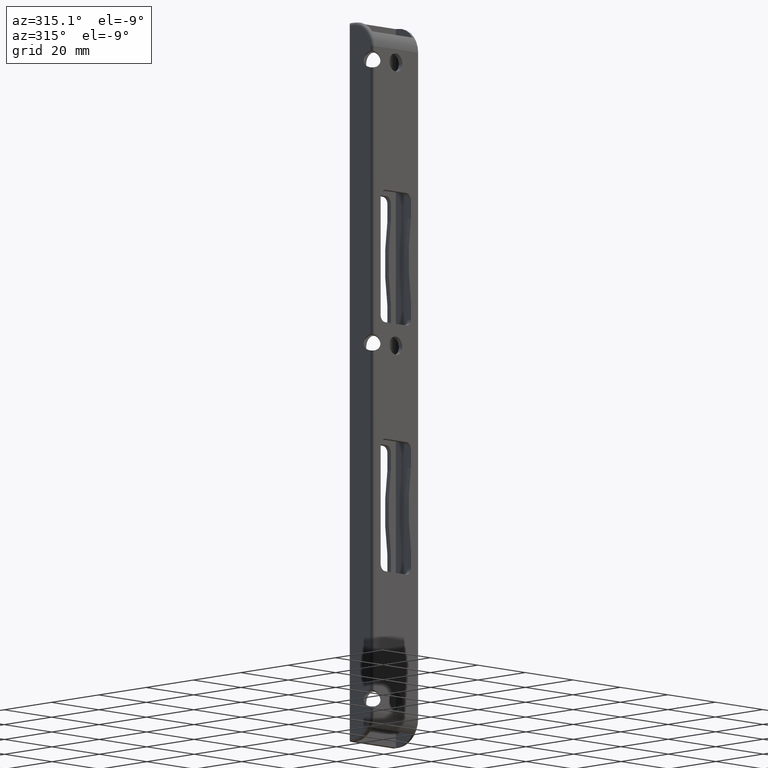
[diagram: clean part render]
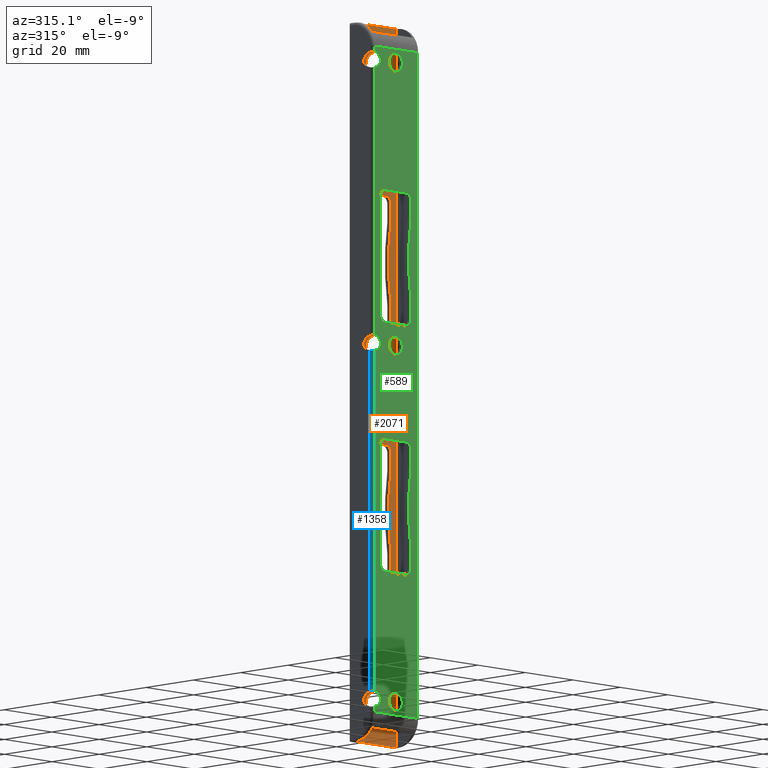
[diagram: same view with three faces highlighted in distinct colors, each labeled with its STEP entity id]
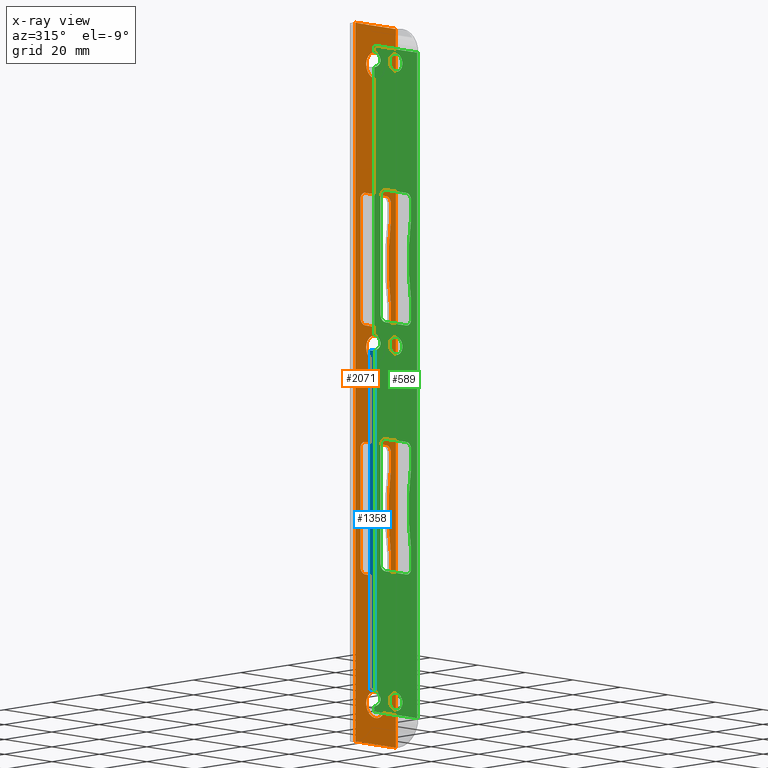
[diagram: x-ray of the same camera — body ghosted, the three highlighted faces saturated]
A machine part, auxiliary view with three faces highlighted in distinct colors.
The next image is the same camera in x-ray (body ghosted, the three faces saturated) — at least one of them is partly hidden behind the body in this view.
Their STEP definitions:

[orange] entity #2071 — the highlighted planar face has unit normal (0, -1, 0).
#25 = DIRECTION ( 'NONE',  ( -1.000000000000000000, 1.328655806570404533E-30, 0.000000000000000000 ) ) ;
#44 = LINE ( 'NONE', #1747, #2668 ) ;
#48 = EDGE_CURVE ( 'NONE', #240, #465, #2415, .T. ) ;
#51 = VERTEX_POINT ( 'NONE', #185 ) ;
#52 = EDGE_CURVE ( 'NONE', #2553, #51, #1187, .T. ) ;
#57 = CARTESIAN_POINT ( 'NONE',  ( -4.399999999999975486, 3.500000000000001332, -17.59999999999999076 ) ) ;
#66 = EDGE_CURVE ( 'NONE', #259, #252, #3198, .T. ) ;
#71 = DIRECTION ( 'NONE',  ( -1.000000000000000000, 1.328655806570404533E-30, 0.000000000000000000 ) ) ;
#90 = ORIENTED_EDGE ( 'NONE', *, *, #553, .F. ) ;
#112 = CIRCLE ( 'NONE', #953, 80.00000000000000000 ) ;
#118 = CIRCLE ( 'NONE', #2875, 4.000000000000003553 ) ;
#133 = CARTESIAN_POINT ( 'NONE',  ( 8.499999999999998224, 3.500000000000000888, -108.5000000000000000 ) ) ;
#145 = EDGE_CURVE ( 'NONE', #3005, #672, #765, .T. ) ;
#150 = ORIENTED_EDGE ( 'NONE', *, *, #48, .T. ) ;
#173 = VERTEX_POINT ( 'NONE', #2534 ) ;
#185 = CARTESIAN_POINT ( 'NONE',  ( -4.399999999999981704, 3.500000000000001332, 57.60000000000002274 ) ) ;
#200 = DIRECTION ( 'NONE',  ( 0.000000000000000000, 0.000000000000000000, -1.000000000000000000 ) ) ;
#204 = DIRECTION ( 'NONE',  ( 4.827186663794240958E-16, 1.109335647967047851E-31, -1.000000000000000000 ) ) ;
#206 = CARTESIAN_POINT ( 'NONE',  ( 4.399999999999997691, 3.500000000000001332, -17.59999999999999076 ) ) ;
#214 = ORIENTED_EDGE ( 'NONE', *, *, #599, .F. ) ;
#217 = VECTOR ( 'NONE', #1180, 1000.000000000000000 ) ;
#232 = CARTESIAN_POINT ( 'NONE',  ( 1.387778780781444256E-14, 3.500000000000000888, 11.00000000000001066 ) ) ;
#240 = VERTEX_POINT ( 'NONE', #2302 ) ;
#244 = VERTEX_POINT ( 'NONE', #2345 ) ;
#252 = VERTEX_POINT ( 'NONE', #2086 ) ;
#259 = VERTEX_POINT ( 'NONE', #1059 ) ;
#267 = CIRCLE ( 'NONE', #2507, 4.000000000000000000 ) ;
#271 = VERTEX_POINT ( 'NONE', #1848 ) ;
#277 = EDGE_CURVE ( 'NONE', #1325, #1691, #1321, .T. ) ;
#283 = EDGE_CURVE ( 'NONE', #173, #2503, #1578, .T. ) ;
#294 = EDGE_LOOP ( 'NONE', ( #2368, #2107 ) ) ;
#296 = CARTESIAN_POINT ( 'NONE',  ( -4.399999999999988809, 3.500000000000001332, -19.59999999999999076 ) ) ;
#302 = VERTEX_POINT ( 'NONE', #57 ) ;
#321 = VERTEX_POINT ( 'NONE', #1395 ) ;
#345 = EDGE_CURVE ( 'NONE', #259, #2553, #2251, .T. ) ;
#388 = DIRECTION ( 'NONE',  ( -1.000000000000000000, 1.328655806570404533E-30, 0.000000000000000000 ) ) ;
#398 = CARTESIAN_POINT ( 'NONE',  ( -8.500000000000001776, 3.500000000000000888, -57.60000000000000142 ) ) ;
#400 = DIRECTION ( 'NONE',  ( 0.000000000000000000, 0.000000000000000000, -1.000000000000000000 ) ) ;
#428 = VECTOR ( 'NONE', #2185, 1000.000000000000000 ) ;
#436 = LINE ( 'NONE', #2706, #3045 ) ;
#453 = DIRECTION ( 'NONE',  ( 1.328655806570404533E-30, -1.000000000000000000, 0.000000000000000000 ) ) ;
#461 = DIRECTION ( 'NONE',  ( 0.000000000000000000, 0.000000000000000000, -1.000000000000000000 ) ) ;
#465 = VERTEX_POINT ( 'NONE', #970 ) ;
#483 = AXIS2_PLACEMENT_3D ( 'NONE', #904, #1972, #1754 ) ;
#490 = CARTESIAN_POINT ( 'NONE',  ( 4.399999999999990585, 3.500000000000001332, 57.60000000000002274 ) ) ;
#542 = AXIS2_PLACEMENT_3D ( 'NONE', #1390, #878, #2868 ) ;
#546 = CARTESIAN_POINT ( 'NONE',  ( 6.400000000000005684, 3.500000000000000888, -55.59999999999998010 ) ) ;
#553 = EDGE_CURVE ( 'NONE', #602, #302, #990, .T. ) ;
#567 = CARTESIAN_POINT ( 'NONE',  ( 4.399999999999983480, 3.500000000000001332, 17.60000000000002629 ) ) ;
#568 = EDGE_CURVE ( 'NONE', #572, #271, #436, .T. ) ;
#572 = VERTEX_POINT ( 'NONE', #2422 ) ;
#596 = EDGE_CURVE ( 'NONE', #820, #909, #267, .T. ) ;
#599 = EDGE_CURVE ( 'NONE', #51, #3148, #2609, .T. ) ;
#602 = VERTEX_POINT ( 'NONE', #206 ) ;
#618 = ORIENTED_EDGE ( 'NONE', *, *, #277, .F. ) ;
#627 = FACE_BOUND ( 'NONE', #294, .T. ) ;
#640 = CIRCLE ( 'NONE', #2450, 4.000000000000003553 ) ;
#657 = CIRCLE ( 'NONE', #1072, 2.000000000000001776 ) ;
#659 = DIRECTION ( 'NONE',  ( 0.000000000000000000, 0.000000000000000000, -1.000000000000000000 ) ) ;
#664 = VERTEX_POINT ( 'NONE', #1007 ) ;
#672 = VERTEX_POINT ( 'NONE', #546 ) ;
#678 = ORIENTED_EDGE ( 'NONE', *, *, #283, .F. ) ;
#696 = CARTESIAN_POINT ( 'NONE',  ( 6.399999999999999467, 3.500000000000001332, 19.60000000000004050 ) ) ;
#699 = CIRCLE ( 'NONE', #2044, 4.000000000000000000 ) ;
#700 = ORIENTED_EDGE ( 'NONE', *, *, #1378, .T. ) ;
#706 = ORIENTED_EDGE ( 'NONE', *, *, #2962, .F. ) ;
#727 = DIRECTION ( 'NONE',  ( 1.328655806570404533E-30, -1.000000000000000000, 0.000000000000000000 ) ) ;
#739 = DIRECTION ( 'NONE',  ( 0.000000000000000000, 0.000000000000000000, -1.000000000000000000 ) ) ;
#752 = CARTESIAN_POINT ( 'NONE',  ( 4.898587196589354650E-16, 3.500000000000000888, 92.50000000000000000 ) ) ;
#765 = CIRCLE ( 'NONE', #962, 2.000000000000001776 ) ;
#777 = EDGE_CURVE ( 'NONE', #1804, #2503, #796, .T. ) ;
#784 = DIRECTION ( 'NONE',  ( 0.000000000000000000, 0.000000000000000000, -1.000000000000000000 ) ) ;
#796 = CIRCLE ( 'NONE', #1214, 2.000000000000001776 ) ;
#820 = VERTEX_POINT ( 'NONE', #3185 ) ;
#830 = EDGE_CURVE ( 'NONE', #2841, #321, #640, .T. ) ;
#874 = DIRECTION ( 'NONE',  ( 0.000000000000000000, 0.000000000000000000, -1.000000000000000000 ) ) ;
#875 = ORIENTED_EDGE ( 'NONE', *, *, #830, .F. ) ;
#877 = ORIENTED_EDGE ( 'NONE', *, *, #2272, .F. ) ;
#878 = DIRECTION ( 'NONE',  ( 1.328655806570404533E-30, -1.000000000000000000, 0.000000000000000000 ) ) ;
#879 = ORIENTED_EDGE ( 'NONE', *, *, #66, .T. ) ;
#895 = VECTOR ( 'NONE', #2849, 1000.000000000000000 ) ;
#904 = CARTESIAN_POINT ( 'NONE',  ( 4.400000000000004796, 3.500000000000001332, 55.60000000000002274 ) ) ;
#909 = VERTEX_POINT ( 'NONE', #1710 ) ;
#932 = DIRECTION ( 'NONE',  ( 1.328655806570404533E-30, -1.000000000000000000, 0.000000000000000000 ) ) ;
#950 = VECTOR ( 'NONE', #388, 1000.000000000000000 ) ;
#953 = AXIS2_PLACEMENT_3D ( 'NONE', #2615, #1646, #400 ) ;
#957 = DIRECTION ( 'NONE',  ( 0.000000000000000000, 0.000000000000000000, -1.000000000000000000 ) ) ;
#962 = AXIS2_PLACEMENT_3D ( 'NONE', #1788, #1508, #784 ) ;
#963 = CARTESIAN_POINT ( 'NONE',  ( 6.399999999999954170, 3.500000000000000888, 108.5000000000000142 ) ) ;
#970 = CARTESIAN_POINT ( 'NONE',  ( -8.500000000000001776, 3.500000000000000888, -108.5000000000000000 ) ) ;
#979 = ORIENTED_EDGE ( 'NONE', *, *, #52, .F. ) ;
#980 = CARTESIAN_POINT ( 'NONE',  ( -8.500000000000001776, 3.500000000000000888, 17.60000000000001918 ) ) ;
#990 = LINE ( 'NONE', #1676, #217 ) ;
#993 = DIRECTION ( 'NONE',  ( 1.328655806570404533E-30, -1.000000000000000000, 0.000000000000000000 ) ) ;
#1007 = CARTESIAN_POINT ( 'NONE',  ( 6.400000000000003020, 3.500000000000001332, -50.20952021291850542 ) ) ;
#1009 = AXIS2_PLACEMENT_3D ( 'NONE', #296, #2593, #3076 ) ;
#1029 = CARTESIAN_POINT ( 'NONE',  ( -6.399999999999995026, 3.500000000000001332, -55.59999999999997300 ) ) ;
#1052 = EDGE_CURVE ( 'NONE', #2417, #244, #2341, .T. ) ;
#1059 = CARTESIAN_POINT ( 'NONE',  ( 6.400000000000004796, 3.500000000000001332, 55.60000000000000853 ) ) ;
#1062 = VECTOR ( 'NONE', #71, 1000.000000000000000 ) ;
#1072 = AXIS2_PLACEMENT_3D ( 'NONE', #2816, #1858, #2612 ) ;
#1104 = AXIS2_PLACEMENT_3D ( 'NONE', #1439, #453, #1456 ) ;
#1180 = DIRECTION ( 'NONE',  ( -1.000000000000000000, 1.328655806570404533E-30, 0.000000000000000000 ) ) ;
#1187 = LINE ( 'NONE', #1202, #428 ) ;
#1191 = CARTESIAN_POINT ( 'NONE',  ( 6.399999999999995914, 3.500000000000001332, 24.99047978708151518 ) ) ;
#1201 = VERTEX_POINT ( 'NONE', #1339 ) ;
#1202 = CARTESIAN_POINT ( 'NONE',  ( -8.500000000000001776, 3.500000000000000888, 57.60000000000002274 ) ) ;
#1214 = AXIS2_PLACEMENT_3D ( 'NONE', #1482, #2464, #1973 ) ;
#1224 = CARTESIAN_POINT ( 'NONE',  ( -8.500000000000001776, 3.500000000000000888, 108.5000000000000000 ) ) ;
#1284 = EDGE_CURVE ( 'NONE', #572, #602, #1931, .T. ) ;
#1303 = ORIENTED_EDGE ( 'NONE', *, *, #2066, .T. ) ;
#1311 = EDGE_LOOP ( 'NONE', ( #706, #875 ) ) ;
#1321 = LINE ( 'NONE', #2807, #2465 ) ;
#1325 = VERTEX_POINT ( 'NONE', #2186 ) ;
#1339 = CARTESIAN_POINT ( 'NONE',  ( -4.400000000000003020, 3.500000000000001332, 17.60000000000002629 ) ) ;
#1347 = FACE_BOUND ( 'NONE', #2637, .T. ) ;
#1348 = DIRECTION ( 'NONE',  ( -1.686536712755230215E-16, 1.109335647967047851E-31, -1.000000000000000000 ) ) ;
#1357 = DIRECTION ( 'NONE',  ( 0.000000000000000000, 0.000000000000000000, -1.000000000000000000 ) ) ;
#1360 = CARTESIAN_POINT ( 'NONE',  ( -8.500000000000001776, 3.500000000000000888, 108.5000000000000000 ) ) ;
#1367 = CIRCLE ( 'NONE', #2510, 2.000000000000001776 ) ;
#1378 = EDGE_CURVE ( 'NONE', #252, #3115, #3001, .T. ) ;
#1390 = CARTESIAN_POINT ( 'NONE',  ( 4.400000000000011902, 3.500000000000001332, -19.59999999999998721 ) ) ;
#1394 = PLANE ( 'NONE',  #1671 ) ;
#1395 = CARTESIAN_POINT ( 'NONE',  ( -5.272528041581026239E-30, 3.500000000000000888, 100.5000000000000000 ) ) ;
#1396 = CARTESIAN_POINT ( 'NONE',  ( -4.399999999999979927, 3.500000000000001332, -57.59999999999999432 ) ) ;
#1410 = CARTESIAN_POINT ( 'NONE',  ( -8.500000000000001776, 3.500000000000000888, -108.5000000000000000 ) ) ;
#1413 = ORIENTED_EDGE ( 'NONE', *, *, #1284, .F. ) ;
#1428 = VECTOR ( 'NONE', #200, 1000.000000000000000 ) ;
#1429 = DIRECTION ( 'NONE',  ( 1.328655806570404533E-30, -1.000000000000000000, 0.000000000000000000 ) ) ;
#1439 = CARTESIAN_POINT ( 'NONE',  ( -4.399999999999995914, 3.500000000000001332, 55.60000000000002274 ) ) ;
#1449 = CARTESIAN_POINT ( 'NONE',  ( 85.39999999999999147, 3.500000000000001332, 37.60000000000000853 ) ) ;
#1452 = LINE ( 'NONE', #2230, #2262 ) ;
#1456 = DIRECTION ( 'NONE',  ( 0.000000000000000000, 0.000000000000000000, -1.000000000000000000 ) ) ;
#1482 = CARTESIAN_POINT ( 'NONE',  ( -4.399999999999995026, 3.500000000000001332, -55.59999999999998721 ) ) ;
#1508 = DIRECTION ( 'NONE',  ( 1.328655806570404533E-30, -1.000000000000000000, 0.000000000000000000 ) ) ;
#1512 = CARTESIAN_POINT ( 'NONE',  ( -6.399999999999996803, 3.500000000000001332, 55.60000000000000853 ) ) ;
#1517 = EDGE_CURVE ( 'NONE', #909, #820, #699, .T. ) ;
#1528 = ORIENTED_EDGE ( 'NONE', *, *, #3184, .T. ) ;
#1559 = CARTESIAN_POINT ( 'NONE',  ( -6.933347799794049071E-30, 3.500000000000000888, -96.50000000000000000 ) ) ;
#1578 = LINE ( 'NONE', #2314, #1586 ) ;
#1585 = ORIENTED_EDGE ( 'NONE', *, *, #2124, .T. ) ;
#1586 = VECTOR ( 'NONE', #1348, 1000.000000000000000 ) ;
#1614 = EDGE_CURVE ( 'NONE', #3005, #1804, #1857, .T. ) ;
#1632 = FACE_BOUND ( 'NONE', #2284, .T. ) ;
#1644 = ORIENTED_EDGE ( 'NONE', *, *, #345, .F. ) ;
#1646 = DIRECTION ( 'NONE',  ( 1.328655806570404533E-30, -1.000000000000000000, 0.000000000000000000 ) ) ;
#1664 = ORIENTED_EDGE ( 'NONE', *, *, #568, .T. ) ;
#1666 = CIRCLE ( 'NONE', #1009, 2.000000000000001776 ) ;
#1671 = AXIS2_PLACEMENT_3D ( 'NONE', #2632, #1888, #2328 ) ;
#1676 = CARTESIAN_POINT ( 'NONE',  ( -8.500000000000001776, 3.500000000000000888, -17.59999999999999076 ) ) ;
#1691 = VERTEX_POINT ( 'NONE', #133 ) ;
#1692 = CARTESIAN_POINT ( 'NONE',  ( 0.000000000000000000, 3.500000000000000888, 96.50000000000000000 ) ) ;
#1710 = CARTESIAN_POINT ( 'NONE',  ( 1.387778780781444413E-14, 3.500000000000000888, 15.00000000000001243 ) ) ;
#1747 = CARTESIAN_POINT ( 'NONE',  ( -6.399999999999985256, 3.500000000000000888, 108.5000000000000000 ) ) ;
#1754 = DIRECTION ( 'NONE',  ( 0.000000000000000000, 0.000000000000000000, -1.000000000000000000 ) ) ;
#1788 = CARTESIAN_POINT ( 'NONE',  ( 4.400000000000006573, 3.500000000000001332, -55.59999999999998721 ) ) ;
#1804 = VERTEX_POINT ( 'NONE', #1396 ) ;
#1816 = EDGE_CURVE ( 'NONE', #1691, #465, #1862, .T. ) ;
#1839 = VERTEX_POINT ( 'NONE', #696 ) ;
#1847 = LINE ( 'NONE', #2344, #895 ) ;
#1848 = CARTESIAN_POINT ( 'NONE',  ( 6.400000000000016342, 3.500000000000001332, -24.99047978708141216 ) ) ;
#1853 = EDGE_LOOP ( 'NONE', ( #1863, #618, #2420, #150 ) ) ;
#1857 = LINE ( 'NONE', #398, #3049 ) ;
#1858 = DIRECTION ( 'NONE',  ( -1.328655806570404533E-30, 1.000000000000000000, -0.000000000000000000 ) ) ;
#1862 = LINE ( 'NONE', #1410, #950 ) ;
#1863 = ORIENTED_EDGE ( 'NONE', *, *, #1816, .F. ) ;
#1888 = DIRECTION ( 'NONE',  ( 1.328655806570404533E-30, -1.000000000000000000, 0.000000000000000000 ) ) ;
#1908 = DIRECTION ( 'NONE',  ( 0.000000000000000000, 0.000000000000000000, -1.000000000000000000 ) ) ;
#1915 = DIRECTION ( 'NONE',  ( 0.000000000000000000, 0.000000000000000000, -1.000000000000000000 ) ) ;
#1931 = CIRCLE ( 'NONE', #542, 1.999999999999998224 ) ;
#1970 = DIRECTION ( 'NONE',  ( 9.654373327588600245E-16, 0.000000000000000000, -1.000000000000000000 ) ) ;
#1972 = DIRECTION ( 'NONE',  ( 1.328655806570404533E-30, -1.000000000000000000, 0.000000000000000000 ) ) ;
#1973 = DIRECTION ( 'NONE',  ( 0.000000000000000000, 0.000000000000000000, -1.000000000000000000 ) ) ;
#1996 = AXIS2_PLACEMENT_3D ( 'NONE', #1449, #2168, #1908 ) ;
#2007 = EDGE_CURVE ( 'NONE', #302, #173, #1666, .T. ) ;
#2028 = DIRECTION ( 'NONE',  ( 0.000000000000000000, 0.000000000000000000, -1.000000000000000000 ) ) ;
#2037 = AXIS2_PLACEMENT_3D ( 'NONE', #2595, #2298, #1357 ) ;
#2044 = AXIS2_PLACEMENT_3D ( 'NONE', #232, #993, #739 ) ;
#2066 = EDGE_CURVE ( 'NONE', #3115, #1839, #1847, .T. ) ;
#2071 = ADVANCED_FACE ( 'NONE', ( #2893, #1347, #627, #3138, #3097, #1632 ), #1394, .T. ) ;
#2080 = VECTOR ( 'NONE', #25, 1000.000000000000000 ) ;
#2086 = CARTESIAN_POINT ( 'NONE',  ( 6.400000000000016342, 3.500000000000001332, 50.20952021291860490 ) ) ;
#2107 = ORIENTED_EDGE ( 'NONE', *, *, #596, .F. ) ;
#2124 = EDGE_CURVE ( 'NONE', #271, #664, #112, .T. ) ;
#2168 = DIRECTION ( 'NONE',  ( 1.328655806570404533E-30, -1.000000000000000000, 0.000000000000000000 ) ) ;
#2185 = DIRECTION ( 'NONE',  ( -1.000000000000000000, 1.328655806570404533E-30, 0.000000000000000000 ) ) ;
#2186 = CARTESIAN_POINT ( 'NONE',  ( 8.499999999999998224, 3.500000000000000888, 108.5000000000000000 ) ) ;
#2230 = CARTESIAN_POINT ( 'NONE',  ( 6.399999999999926636, 3.500000000000000888, 108.5000000000000142 ) ) ;
#2231 = ORIENTED_EDGE ( 'NONE', *, *, #2981, .T. ) ;
#2240 = ORIENTED_EDGE ( 'NONE', *, *, #777, .T. ) ;
#2248 = DIRECTION ( 'NONE',  ( 1.328655806570404533E-30, -1.000000000000000000, 0.000000000000000000 ) ) ;
#2251 = CIRCLE ( 'NONE', #483, 2.000000000000001776 ) ;
#2262 = VECTOR ( 'NONE', #204, 1000.000000000000000 ) ;
#2272 = EDGE_CURVE ( 'NONE', #2971, #1839, #1367, .T. ) ;
#2284 = EDGE_LOOP ( 'NONE', ( #1664, #1585, #1528, #3145, #3012, #2240, #678, #2523, #90, #1413 ) ) ;
#2296 = CIRCLE ( 'NONE', #2037, 4.000000000000003553 ) ;
#2298 = DIRECTION ( 'NONE',  ( 1.328655806570404533E-30, -1.000000000000000000, 0.000000000000000000 ) ) ;
#2299 = LINE ( 'NONE', #1360, #1062 ) ;
#2302 = CARTESIAN_POINT ( 'NONE',  ( -8.500000000000001776, 3.500000000000000888, 108.5000000000000000 ) ) ;
#2314 = CARTESIAN_POINT ( 'NONE',  ( -6.399999999999967493, 3.500000000000000888, 108.5000000000000000 ) ) ;
#2328 = DIRECTION ( 'NONE',  ( 0.000000000000000000, 0.000000000000000000, -1.000000000000000000 ) ) ;
#2341 = CIRCLE ( 'NONE', #3044, 4.000000000000003553 ) ;
#2344 = CARTESIAN_POINT ( 'NONE',  ( 6.399999999999970157, 3.500000000000000888, 108.5000000000000000 ) ) ;
#2345 = CARTESIAN_POINT ( 'NONE',  ( 8.904477804581167547E-31, 3.500000000000000888, -92.50000000000000000 ) ) ;
#2368 = ORIENTED_EDGE ( 'NONE', *, *, #1517, .F. ) ;
#2393 = VERTEX_POINT ( 'NONE', #3118 ) ;
#2405 = DIRECTION ( 'NONE',  ( 1.328655806570404533E-30, -1.000000000000000000, 0.000000000000000000 ) ) ;
#2415 = LINE ( 'NONE', #1224, #1428 ) ;
#2417 = VERTEX_POINT ( 'NONE', #2947 ) ;
#2420 = ORIENTED_EDGE ( 'NONE', *, *, #2942, .T. ) ;
#2422 = CARTESIAN_POINT ( 'NONE',  ( 6.400000000000011902, 3.500000000000001332, -19.60000000000000497 ) ) ;
#2432 = ORIENTED_EDGE ( 'NONE', *, *, #2556, .F. ) ;
#2443 = CARTESIAN_POINT ( 'NONE',  ( -6.933347799794049071E-30, 3.500000000000000888, -96.50000000000000000 ) ) ;
#2450 = AXIS2_PLACEMENT_3D ( 'NONE', #1692, #2405, #659 ) ;
#2464 = DIRECTION ( 'NONE',  ( -1.328655806570404533E-30, 1.000000000000000000, -0.000000000000000000 ) ) ;
#2465 = VECTOR ( 'NONE', #874, 1000.000000000000000 ) ;
#2481 = EDGE_CURVE ( 'NONE', #2971, #1201, #3192, .T. ) ;
#2503 = VERTEX_POINT ( 'NONE', #1029 ) ;
#2507 = AXIS2_PLACEMENT_3D ( 'NONE', #3170, #932, #1915 ) ;
#2510 = AXIS2_PLACEMENT_3D ( 'NONE', #3190, #1429, #957 ) ;
#2523 = ORIENTED_EDGE ( 'NONE', *, *, #2007, .F. ) ;
#2534 = CARTESIAN_POINT ( 'NONE',  ( -6.399999999999988809, 3.500000000000001332, -19.60000000000000497 ) ) ;
#2553 = VERTEX_POINT ( 'NONE', #490 ) ;
#2556 = EDGE_CURVE ( 'NONE', #3148, #2393, #44, .T. ) ;
#2593 = DIRECTION ( 'NONE',  ( 1.328655806570404533E-30, -1.000000000000000000, 0.000000000000000000 ) ) ;
#2595 = CARTESIAN_POINT ( 'NONE',  ( 0.000000000000000000, 3.500000000000000888, 96.50000000000000000 ) ) ;
#2609 = CIRCLE ( 'NONE', #1104, 2.000000000000001776 ) ;
#2612 = DIRECTION ( 'NONE',  ( 0.000000000000000000, 0.000000000000000000, -1.000000000000000000 ) ) ;
#2615 = CARTESIAN_POINT ( 'NONE',  ( 85.40000000000000568, 3.500000000000001332, -37.60000000000000853 ) ) ;
#2632 = CARTESIAN_POINT ( 'NONE',  ( -8.500000000000001776, 3.500000000000000888, 108.5000000000000000 ) ) ;
#2637 = EDGE_LOOP ( 'NONE', ( #2852, #2964 ) ) ;
#2668 = VECTOR ( 'NONE', #2761, 1000.000000000000000 ) ;
#2695 = EDGE_CURVE ( 'NONE', #244, #2417, #118, .T. ) ;
#2699 = DIRECTION ( 'NONE',  ( 9.654373327588606161E-16, 0.000000000000000000, -1.000000000000000000 ) ) ;
#2706 = CARTESIAN_POINT ( 'NONE',  ( 6.399999999999888445, 3.500000000000000888, 108.5000000000000142 ) ) ;
#2761 = DIRECTION ( 'NONE',  ( -1.927470528863120528E-16, 0.000000000000000000, -1.000000000000000000 ) ) ;
#2807 = CARTESIAN_POINT ( 'NONE',  ( 8.499999999999998224, 3.500000000000000888, 108.5000000000000000 ) ) ;
#2816 = CARTESIAN_POINT ( 'NONE',  ( -4.400000000000003020, 3.500000000000001332, 19.60000000000002629 ) ) ;
#2837 = EDGE_LOOP ( 'NONE', ( #2432, #214, #979, #1644, #879, #700, #1303, #877, #3165, #2231 ) ) ;
#2841 = VERTEX_POINT ( 'NONE', #752 ) ;
#2849 = DIRECTION ( 'NONE',  ( 3.218124442529494136E-16, 0.000000000000000000, -1.000000000000000000 ) ) ;
#2852 = ORIENTED_EDGE ( 'NONE', *, *, #2695, .F. ) ;
#2868 = DIRECTION ( 'NONE',  ( 0.000000000000000000, 0.000000000000000000, -1.000000000000000000 ) ) ;
#2875 = AXIS2_PLACEMENT_3D ( 'NONE', #2443, #727, #461 ) ;
#2893 = FACE_BOUND ( 'NONE', #2837, .T. ) ;
#2942 = EDGE_CURVE ( 'NONE', #1325, #240, #2299, .T. ) ;
#2947 = CARTESIAN_POINT ( 'NONE',  ( 4.898587196589416773E-16, 3.500000000000000888, -100.5000000000000000 ) ) ;
#2962 = EDGE_CURVE ( 'NONE', #321, #2841, #2296, .T. ) ;
#2964 = ORIENTED_EDGE ( 'NONE', *, *, #1052, .F. ) ;
#2971 = VERTEX_POINT ( 'NONE', #567 ) ;
#2981 = EDGE_CURVE ( 'NONE', #1201, #2393, #657, .T. ) ;
#3001 = CIRCLE ( 'NONE', #1996, 79.99999999999998579 ) ;
#3005 = VERTEX_POINT ( 'NONE', #3095 ) ;
#3012 = ORIENTED_EDGE ( 'NONE', *, *, #1614, .T. ) ;
#3044 = AXIS2_PLACEMENT_3D ( 'NONE', #1559, #2248, #2028 ) ;
#3045 = VECTOR ( 'NONE', #1970, 1000.000000000000000 ) ;
#3049 = VECTOR ( 'NONE', #3153, 1000.000000000000000 ) ;
#3051 = VECTOR ( 'NONE', #2699, 1000.000000000000000 ) ;
#3076 = DIRECTION ( 'NONE',  ( 0.000000000000000000, 0.000000000000000000, -1.000000000000000000 ) ) ;
#3095 = CARTESIAN_POINT ( 'NONE',  ( 4.399999999999990585, 3.500000000000001332, -57.59999999999999432 ) ) ;
#3097 = FACE_OUTER_BOUND ( 'NONE', #1853, .T. ) ;
#3115 = VERTEX_POINT ( 'NONE', #1191 ) ;
#3118 = CARTESIAN_POINT ( 'NONE',  ( -6.400000000000003908, 3.500000000000001332, 19.60000000000004050 ) ) ;
#3138 = FACE_BOUND ( 'NONE', #1311, .T. ) ;
#3145 = ORIENTED_EDGE ( 'NONE', *, *, #145, .F. ) ;
#3148 = VERTEX_POINT ( 'NONE', #1512 ) ;
#3153 = DIRECTION ( 'NONE',  ( -1.000000000000000000, 1.328655806570404533E-30, 0.000000000000000000 ) ) ;
#3165 = ORIENTED_EDGE ( 'NONE', *, *, #2481, .T. ) ;
#3170 = CARTESIAN_POINT ( 'NONE',  ( 1.387778780781444256E-14, 3.500000000000000888, 11.00000000000001066 ) ) ;
#3184 = EDGE_CURVE ( 'NONE', #664, #672, #1452, .T. ) ;
#3185 = CARTESIAN_POINT ( 'NONE',  ( 1.436764652747338473E-14, 3.500000000000000888, 7.000000000000011546 ) ) ;
#3190 = CARTESIAN_POINT ( 'NONE',  ( 4.399999999999999467, 3.500000000000001332, 19.60000000000002629 ) ) ;
#3192 = LINE ( 'NONE', #980, #2080 ) ;
#3198 = LINE ( 'NONE', #963, #3051 ) ;

[blue] entity #1358 — the highlighted cylindrical surface (edge-blend (fillet) strip) has radius 1 mm, axis along (0, 0, -1).
#2 = B_SPLINE_CURVE_WITH_KNOTS ( 'NONE', 3,
 ( #1004, #1911, #243, #1986, #1929, #2191, #1437, #2936, #685, #224 ),
 .UNSPECIFIED., .F., .F.,
 ( 4, 2, 2, 2, 4 ),
 ( 8.673617379884034509E-19, 0.0003947158495685358735, 0.0007894316991370708796, 0.001184147548705605886, 0.001578863398274140892 ),
 .UNSPECIFIED. ) ;
#77 = B_SPLINE_CURVE_WITH_KNOTS ( 'NONE', 3,
 ( #1800, #2099, #1101, #1563, #3066, #816, #2582, #1335, #827, #314 ),
 .UNSPECIFIED., .F., .F.,
 ( 4, 2, 2, 2, 4 ),
 ( 0.000000000000000000, 0.0003947158495685360903, 0.0007894316991370721806, 0.001184147548705608271, 0.001578863398274144361 ),
 .UNSPECIFIED. ) ;
#88 = CARTESIAN_POINT ( 'NONE',  ( -10.00000000000000000, -4.000000000000000000, -94.10208423834366442 ) ) ;
#95 = ORIENTED_EDGE ( 'NONE', *, *, #249, .F. ) ;
#139 = ORIENTED_EDGE ( 'NONE', *, *, #2456, .F. ) ;
#224 = CARTESIAN_POINT ( 'NONE',  ( -9.000000000000001776, -4.999999999999999112, 8.602084238343650213 ) ) ;
#243 = CARTESIAN_POINT ( 'NONE',  ( -9.974667682813942449, -4.259173357735509313, 8.548675052398099439 ) ) ;
#249 = EDGE_CURVE ( 'NONE', #2539, #2900, #77, .T. ) ;
#314 = CARTESIAN_POINT ( 'NONE',  ( -10.00000000000000000, -4.000000000000000000, -94.10208423834366442 ) ) ;
#389 = VERTEX_POINT ( 'NONE', #1409 ) ;
#407 = DIRECTION ( 'NONE',  ( 0.000000000000000000, 0.000000000000000000, -1.000000000000000000 ) ) ;
#448 = CARTESIAN_POINT ( 'NONE',  ( -9.000000000000000000, -3.999999999999999112, 108.5000000000000000 ) ) ;
#450 = CARTESIAN_POINT ( 'NONE',  ( -9.000000000000000000, -4.999999999999999112, 108.5000000000000000 ) ) ;
#685 = CARTESIAN_POINT ( 'NONE',  ( -9.130594281356184894, -4.999999999999999112, 8.574853448287461433 ) ) ;
#816 = CARTESIAN_POINT ( 'NONE',  ( -9.799887182283946174, -4.614429218663092414, -93.99997091286256534 ) ) ;
#827 = CARTESIAN_POINT ( 'NONE',  ( -9.999999999999998224, -4.130594281356187558, -94.07485344828744189 ) ) ;
#911 = FACE_OUTER_BOUND ( 'NONE', #2842, .T. ) ;
#937 = LINE ( 'NONE', #1921, #1213 ) ;
#1004 = CARTESIAN_POINT ( 'NONE',  ( -10.00000000000000000, -3.999999999999998224, 8.602084238343653766 ) ) ;
#1101 = CARTESIAN_POINT ( 'NONE',  ( -9.259173357735509313, -4.974667682813941560, -94.04867505239809589 ) ) ;
#1213 = VECTOR ( 'NONE', #2928, 1000.000000000000000 ) ;
#1335 = CARTESIAN_POINT ( 'NONE',  ( -9.974237619709116487, -4.260538600632989947, -94.04843424357186166 ) ) ;
#1358 = ADVANCED_FACE ( 'NONE', ( #911 ), #2901, .T. ) ;
#1409 = CARTESIAN_POINT ( 'NONE',  ( -9.000000000000001776, -4.999999999999999112, 8.602084238343650213 ) ) ;
#1416 = DIRECTION ( 'NONE',  ( -1.000000000000000000, 0.000000000000000000, 0.000000000000000000 ) ) ;
#1437 = CARTESIAN_POINT ( 'NONE',  ( -9.501759100513828216, -4.874789750241642849, 8.510967683980783960 ) ) ;
#1563 = CARTESIAN_POINT ( 'NONE',  ( -9.501396767029547163, -4.875070970432749284, -94.01099540815997102 ) ) ;
#1749 = DIRECTION ( 'NONE',  ( 0.000000000000000000, 0.000000000000000000, -1.000000000000000000 ) ) ;
#1800 = CARTESIAN_POINT ( 'NONE',  ( -9.000000000000000000, -4.999999999999999112, -94.10208423834363600 ) ) ;
#1911 = CARTESIAN_POINT ( 'NONE',  ( -9.999999999999998224, -4.130562051731618389, 8.574860168628742230 ) ) ;
#1921 = CARTESIAN_POINT ( 'NONE',  ( -10.00000000000000000, -4.000000000000000000, 108.5000000000000000 ) ) ;
#1929 = CARTESIAN_POINT ( 'NONE',  ( -9.800566673775751525, -4.613543617005919195, 8.500029209613298775 ) ) ;
#1986 = CARTESIAN_POINT ( 'NONE',  ( -9.875070970432744843, -4.501396767029548052, 8.510995408159985232 ) ) ;
#2087 = ORIENTED_EDGE ( 'NONE', *, *, #3135, .F. ) ;
#2099 = CARTESIAN_POINT ( 'NONE',  ( -9.130562051731617501, -4.999999999999999112, -94.07486016862873157 ) ) ;
#2191 = CARTESIAN_POINT ( 'NONE',  ( -9.614429218663097743, -4.799887182283940845, 8.499970912862552908 ) ) ;
#2192 = ORIENTED_EDGE ( 'NONE', *, *, #3181, .F. ) ;
#2434 = LINE ( 'NONE', #450, #3209 ) ;
#2456 = EDGE_CURVE ( 'NONE', #2900, #3111, #937, .T. ) ;
#2461 = AXIS2_PLACEMENT_3D ( 'NONE', #448, #407, #1416 ) ;
#2539 = VERTEX_POINT ( 'NONE', #3023 ) ;
#2582 = CARTESIAN_POINT ( 'NONE',  ( -9.874789750241642849, -4.501759100513826439, -94.01096768398079462 ) ) ;
#2748 = CARTESIAN_POINT ( 'NONE',  ( -10.00000000000000000, -3.999999999999998224, 8.602084238343653766 ) ) ;
#2842 = EDGE_LOOP ( 'NONE', ( #2087, #139, #95, #2192 ) ) ;
#2900 = VERTEX_POINT ( 'NONE', #88 ) ;
#2901 = CYLINDRICAL_SURFACE ( 'NONE', #2461, 0.9999999999999991118 ) ;
#2928 = DIRECTION ( 'NONE',  ( -0.000000000000000000, -0.000000000000000000, 1.000000000000000000 ) ) ;
#2936 = CARTESIAN_POINT ( 'NONE',  ( -9.260538600632992612, -4.974237619709113822, 8.548434243571866986 ) ) ;
#3023 = CARTESIAN_POINT ( 'NONE',  ( -9.000000000000000000, -4.999999999999999112, -94.10208423834363600 ) ) ;
#3066 = CARTESIAN_POINT ( 'NONE',  ( -9.613543617005920083, -4.800566673775755078, -94.00002920961328812 ) ) ;
#3111 = VERTEX_POINT ( 'NONE', #2748 ) ;
#3135 = EDGE_CURVE ( 'NONE', #3111, #389, #2, .T. ) ;
#3181 = EDGE_CURVE ( 'NONE', #389, #2539, #2434, .T. ) ;
#3209 = VECTOR ( 'NONE', #1749, 1000.000000000000000 ) ;

[green] entity #589 — the highlighted planar face has unit normal (-0, 1, 0).
#8 = EDGE_CURVE ( 'NONE', #2331, #272, #1695, .T. ) ;
#16 = VERTEX_POINT ( 'NONE', #1907 ) ;
#18 = CARTESIAN_POINT ( 'NONE',  ( -4.399999999999995026, -4.999999999999999112, -55.59999999999998721 ) ) ;
#30 = EDGE_LOOP ( 'NONE', ( #3024, #1606 ) ) ;
#42 = CARTESIAN_POINT ( 'NONE',  ( -8.999999999999998224, -4.999999999999999112, 94.10208423834363600 ) ) ;
#43 = VERTEX_POINT ( 'NONE', #1667 ) ;
#75 = CIRCLE ( 'NONE', #603, 2.749999999999997335 ) ;
#81 = VERTEX_POINT ( 'NONE', #42 ) ;
#93 = LINE ( 'NONE', #2888, #2666 ) ;
#104 = ORIENTED_EDGE ( 'NONE', *, *, #667, .F. ) ;
#106 = ORIENTED_EDGE ( 'NONE', *, *, #1131, .T. ) ;
#157 = CARTESIAN_POINT ( 'NONE',  ( -6.464466094067241819, -4.999999999999999112, -96.50000000000000000 ) ) ;
#169 = ORIENTED_EDGE ( 'NONE', *, *, #849, .T. ) ;
#177 = CARTESIAN_POINT ( 'NONE',  ( -6.464466094067241819, -4.999999999999999112, 96.50000000000000000 ) ) ;
#182 = EDGE_CURVE ( 'NONE', #939, #2619, #2000, .T. ) ;
#186 = CARTESIAN_POINT ( 'NONE',  ( -7.439005865596057809, -4.999999999999999112, 8.927574015625417303 ) ) ;
#191 = DIRECTION ( 'NONE',  ( 0.000000000000000000, 0.000000000000000000, 1.000000000000000000 ) ) ;
#209 = CARTESIAN_POINT ( 'NONE',  ( 4.399999999999983480, -4.999999999999999112, 17.60000000000002629 ) ) ;
#219 = CARTESIAN_POINT ( 'NONE',  ( -9.000000000000001776, -4.999999999999999112, 8.602084238343650213 ) ) ;
#235 = DIRECTION ( 'NONE',  ( -1.000000000000000000, 1.328655806570404533E-30, -0.000000000000000000 ) ) ;
#272 = VERTEX_POINT ( 'NONE', #1605 ) ;
#278 = CARTESIAN_POINT ( 'NONE',  ( -4.400000000000003020, -4.999999999999999112, 17.60000000000002629 ) ) ;
#289 = DIRECTION ( 'NONE',  ( -3.218124442529494136E-16, 0.000000000000000000, 1.000000000000000000 ) ) ;
#290 = VERTEX_POINT ( 'NONE', #1832 ) ;
#332 = CIRCLE ( 'NONE', #2513, 2.750000000000002665 ) ;
#340 = CARTESIAN_POINT ( 'NONE',  ( 1.421456567757997526E-14, -4.999999999999999112, 8.250000000000014211 ) ) ;
#342 = ORIENTED_EDGE ( 'NONE', *, *, #571, .T. ) ;
#343 = LINE ( 'NONE', #2802, #646 ) ;
#362 = CARTESIAN_POINT ( 'NONE',  ( 4.400000000000011902, -4.999999999999999112, -19.59999999999998721 ) ) ;
#375 =( BOUNDED_CURVE ( )  B_SPLINE_CURVE ( 3, ( #2416, #2933, #186, #219 ),
 .UNSPECIFIED., .F., .T. ) 
 B_SPLINE_CURVE_WITH_KNOTS ( ( 4, 4 ),
 ( 3.141592653589793116, 4.425632428173143396 ),
 .UNSPECIFIED. ) 
 CURVE ( )  GEOMETRIC_REPRESENTATION_ITEM ( )  RATIONAL_B_SPLINE_CURVE ( ( 1.000000000000000000, 0.8672585699795258840, 0.8672585699795258840, 1.000000000000000000 ) ) 
 REPRESENTATION_ITEM ( '' )  );
#389 = VERTEX_POINT ( 'NONE', #1409 ) ;
#412 = DIRECTION ( 'NONE',  ( 1.328655806570404533E-30, -1.000000000000000000, 0.000000000000000000 ) ) ;
#413 = CARTESIAN_POINT ( 'NONE',  ( -9.000000000000000000, -4.999999999999999112, 13.39791576165636933 ) ) ;
#420 = CIRCLE ( 'NONE', #845, 80.00000000000000000 ) ;
#426 = DIRECTION ( 'NONE',  ( -1.328655806570404533E-30, 1.000000000000000000, 0.000000000000000000 ) ) ;
#433 = ORIENTED_EDGE ( 'NONE', *, *, #2731, .T. ) ;
#449 = VERTEX_POINT ( 'NONE', #1994 ) ;
#450 = CARTESIAN_POINT ( 'NONE',  ( -9.000000000000000000, -4.999999999999999112, 108.5000000000000000 ) ) ;
#500 = AXIS2_PLACEMENT_3D ( 'NONE', #1468, #2157, #2954 ) ;
#514 = DIRECTION ( 'NONE',  ( 1.000000000000000000, -1.328655806570404533E-30, 0.000000000000000000 ) ) ;
#536 = DIRECTION ( 'NONE',  ( 0.000000000000000000, 0.000000000000000000, 1.000000000000000000 ) ) ;
#537 = CIRCLE ( 'NONE', #2339, 2.000000000000001776 ) ;
#544 = VECTOR ( 'NONE', #289, 1000.000000000000000 ) ;
#545 = ORIENTED_EDGE ( 'NONE', *, *, #1519, .T. ) ;
#559 = CARTESIAN_POINT ( 'NONE',  ( -6.464466094067241819, -4.999999999999999112, -96.50000000000000000 ) ) ;
#571 = EDGE_CURVE ( 'NONE', #888, #2331, #2940, .T. ) ;
#573 = EDGE_CURVE ( 'NONE', #2891, #718, #2040, .T. ) ;
#582 = CARTESIAN_POINT ( 'NONE',  ( -9.000000000000000000, -4.999999999999999112, 100.5000000000000000 ) ) ;
#584 = CARTESIAN_POINT ( 'NONE',  ( 6.400000000000004796, -4.999999999999999112, 55.60000000000000853 ) ) ;
#589 = ADVANCED_FACE ( 'NONE', ( #2176, #2978, #1211, #1693, #2385, #1424 ), #3186, .F. ) ;
#603 = AXIS2_PLACEMENT_3D ( 'NONE', #2749, #1035, #2025 ) ;
#608 = ORIENTED_EDGE ( 'NONE', *, *, #8, .T. ) ;
#635 = DIRECTION ( 'NONE',  ( -1.328655806570404533E-30, 1.000000000000000000, 0.000000000000000000 ) ) ;
#642 = CARTESIAN_POINT ( 'NONE',  ( -6.464466094067240931, -4.999999999999999112, 95.34921985638581532 ) ) ;
#643 = AXIS2_PLACEMENT_3D ( 'NONE', #362, #635, #1082 ) ;
#645 = AXIS2_PLACEMENT_3D ( 'NONE', #674, #412, #2646 ) ;
#646 = VECTOR ( 'NONE', #2529, 1000.000000000000000 ) ;
#650 = LINE ( 'NONE', #2914, #889 ) ;
#662 = CARTESIAN_POINT ( 'NONE',  ( 4.399999999999990585, -4.999999999999999112, 57.60000000000002274 ) ) ;
#667 = EDGE_CURVE ( 'NONE', #290, #3200, #778, .T. ) ;
#673 = EDGE_CURVE ( 'NONE', #1261, #1470, #537, .T. ) ;
#674 = CARTESIAN_POINT ( 'NONE',  ( -4.400000000000003020, -4.999999999999999112, 19.60000000000002629 ) ) ;
#675 = CARTESIAN_POINT ( 'NONE',  ( -6.464466094067244484, -4.999999999999999112, 12.15078014361419179 ) ) ;
#718 = VERTEX_POINT ( 'NONE', #278 ) ;
#719 = CARTESIAN_POINT ( 'NONE',  ( -6.464466094067240931, -4.999999999999999112, -97.65078014361418468 ) ) ;
#735 = CARTESIAN_POINT ( 'NONE',  ( -9.000000000000000000, -4.999999999999999112, 108.5000000000000000 ) ) ;
#748 = DIRECTION ( 'NONE',  ( 0.000000000000000000, 0.000000000000000000, 1.000000000000000000 ) ) ;
#749 = CARTESIAN_POINT ( 'NONE',  ( 4.400000000000006573, -4.999999999999999112, -55.59999999999998721 ) ) ;
#757 = DIRECTION ( 'NONE',  ( -9.654373327588606161E-16, 0.000000000000000000, 1.000000000000000000 ) ) ;
#762 = VECTOR ( 'NONE', #2990, 1000.000000000000000 ) ;
#773 = VERTEX_POINT ( 'NONE', #209 ) ;
#778 = LINE ( 'NONE', #3058, #2126 ) ;
#788 = VERTEX_POINT ( 'NONE', #1884 ) ;
#808 = LINE ( 'NONE', #2306, #1217 ) ;
#811 = CARTESIAN_POINT ( 'NONE',  ( 8.999999999999996447, -4.999999999999999112, 108.5000000000000000 ) ) ;
#812 = EDGE_CURVE ( 'NONE', #2891, #16, #2421, .T. ) ;
#813 = CIRCLE ( 'NONE', #3056, 2.750000000000002665 ) ;
#823 = CARTESIAN_POINT ( 'NONE',  ( 1.309632362183320380E-29, -4.999999999999999112, -96.50000000000000000 ) ) ;
#825 = LINE ( 'NONE', #1133, #1483 ) ;
#843 = EDGE_CURVE ( 'NONE', #3127, #2093, #2383, .T. ) ;
#845 = AXIS2_PLACEMENT_3D ( 'NONE', #3171, #1956, #1474 ) ;
#848 = AXIS2_PLACEMENT_3D ( 'NONE', #2204, #3216, #1700 ) ;
#849 = EDGE_CURVE ( 'NONE', #2317, #1327, #2485, .T. ) ;
#870 = DIRECTION ( 'NONE',  ( -0.000000000000000000, -0.000000000000000000, 1.000000000000000000 ) ) ;
#884 = EDGE_CURVE ( 'NONE', #1327, #2927, #1799, .T. ) ;
#888 = VERTEX_POINT ( 'NONE', #582 ) ;
#889 = VECTOR ( 'NONE', #2881, 1000.000000000000000 ) ;
#898 = CIRCLE ( 'NONE', #1829, 2.000000000000001776 ) ;
#902 = EDGE_CURVE ( 'NONE', #3200, #3127, #420, .T. ) ;
#907 = VERTEX_POINT ( 'NONE', #413 ) ;
#910 = ORIENTED_EDGE ( 'NONE', *, *, #812, .T. ) ;
#921 = ORIENTED_EDGE ( 'NONE', *, *, #2943, .T. ) ;
#925 = CARTESIAN_POINT ( 'NONE',  ( -6.464466094067240931, -4.999999999999999112, 97.65078014361418468 ) ) ;
#930 = ORIENTED_EDGE ( 'NONE', *, *, #3181, .T. ) ;
#934 = CARTESIAN_POINT ( 'NONE',  ( 6.399999999999995914, -4.999999999999999112, 24.99047978708151518 ) ) ;
#939 = VERTEX_POINT ( 'NONE', #2233 ) ;
#1005 = ORIENTED_EDGE ( 'NONE', *, *, #182, .T. ) ;
#1006 = EDGE_CURVE ( 'NONE', #907, #2401, #2590, .T. ) ;
#1032 = ORIENTED_EDGE ( 'NONE', *, *, #673, .F. ) ;
#1035 = DIRECTION ( 'NONE',  ( -1.328655806570404533E-30, 1.000000000000000000, 0.000000000000000000 ) ) ;
#1050 = EDGE_CURVE ( 'NONE', #718, #773, #808, .T. ) ;
#1051 = ORIENTED_EDGE ( 'NONE', *, *, #1603, .T. ) ;
#1054 = CIRCLE ( 'NONE', #3090, 2.750000000000002665 ) ;
#1055 =( BOUNDED_CURVE ( )  B_SPLINE_CURVE ( 3, ( #1120, #2100, #1579, #559 ),
 .UNSPECIFIED., .F., .T. ) 
 B_SPLINE_CURVE_WITH_KNOTS ( ( 4, 4 ),
 ( 1.857552879006443503, 3.141592653589793116 ),
 .UNSPECIFIED. ) 
 CURVE ( )  GEOMETRIC_REPRESENTATION_ITEM ( )  RATIONAL_B_SPLINE_CURVE ( ( 1.000000000000000000, 0.8672585699795259950, 0.8672585699795259950, 1.000000000000000000 ) ) 
 REPRESENTATION_ITEM ( '' )  );
#1056 = VECTOR ( 'NONE', #1932, 1000.000000000000000 ) ;
#1066 = CARTESIAN_POINT ( 'NONE',  ( -10.00000000000000000, -4.999999999999999112, -100.5000000000000142 ) ) ;
#1082 = DIRECTION ( 'NONE',  ( 0.000000000000000000, 0.000000000000000000, 1.000000000000000000 ) ) ;
#1092 = ORIENTED_EDGE ( 'NONE', *, *, #2644, .T. ) ;
#1096 = LINE ( 'NONE', #811, #2141 ) ;
#1120 = CARTESIAN_POINT ( 'NONE',  ( -9.000000000000000000, -4.999999999999999112, -94.10208423834363600 ) ) ;
#1131 = EDGE_CURVE ( 'NONE', #2927, #1221, #2812, .T. ) ;
#1133 = CARTESIAN_POINT ( 'NONE',  ( -4.399999999999981704, -4.999999999999999112, 57.60000000000002274 ) ) ;
#1157 = VERTEX_POINT ( 'NONE', #1609 ) ;
#1168 = EDGE_CURVE ( 'NONE', #81, #907, #93, .T. ) ;
#1175 = CARTESIAN_POINT ( 'NONE',  ( 6.933347799794049071E-30, -4.999999999999999112, 96.50000000000000000 ) ) ;
#1177 = VERTEX_POINT ( 'NONE', #340 ) ;
#1178 = CARTESIAN_POINT ( 'NONE',  ( 6.400000000000003020, -4.999999999999999112, -50.20952021291850542 ) ) ;
#1193 = DIRECTION ( 'NONE',  ( 1.927470528863120528E-16, 0.000000000000000000, 1.000000000000000000 ) ) ;
#1203 = DIRECTION ( 'NONE',  ( -1.328655806570404533E-30, 1.000000000000000000, 0.000000000000000000 ) ) ;
#1205 = EDGE_CURVE ( 'NONE', #2619, #2093, #3194, .T. ) ;
#1211 = FACE_BOUND ( 'NONE', #30, .T. ) ;
#1217 = VECTOR ( 'NONE', #1764, 1000.000000000000000 ) ;
#1221 = VERTEX_POINT ( 'NONE', #1838 ) ;
#1225 = CARTESIAN_POINT ( 'NONE',  ( -8.999999999999998224, -4.999999999999999112, -98.89791576165636400 ) ) ;
#1228 = CARTESIAN_POINT ( 'NONE',  ( 6.400000000000010125, -4.999999999999999112, 50.20952021291860490 ) ) ;
#1243 = CARTESIAN_POINT ( 'NONE',  ( -4.399999999999988809, -4.999999999999999112, -19.59999999999999076 ) ) ;
#1261 = VERTEX_POINT ( 'NONE', #2105 ) ;
#1287 = AXIS2_PLACEMENT_3D ( 'NONE', #1305, #1968, #536 ) ;
#1298 = ORIENTED_EDGE ( 'NONE', *, *, #1205, .T. ) ;
#1305 = CARTESIAN_POINT ( 'NONE',  ( 85.39999999999999147, -4.999999999999999112, 37.60000000000000853 ) ) ;
#1306 = EDGE_LOOP ( 'NONE', ( #2672, #910, #2173, #1802, #433, #2346, #1465, #1336, #1092, #2023 ) ) ;
#1307 = EDGE_CURVE ( 'NONE', #2401, #389, #375, .T. ) ;
#1313 = CARTESIAN_POINT ( 'NONE',  ( 1.387778780781448515E-14, -4.999999999999999112, 13.75000000000000888 ) ) ;
#1327 = VERTEX_POINT ( 'NONE', #1225 ) ;
#1329 = DIRECTION ( 'NONE',  ( -1.328655806570404533E-30, 1.000000000000000000, 0.000000000000000000 ) ) ;
#1332 = DIRECTION ( 'NONE',  ( 0.000000000000000000, 0.000000000000000000, 1.000000000000000000 ) ) ;
#1336 = ORIENTED_EDGE ( 'NONE', *, *, #2581, .F. ) ;
#1340 = CARTESIAN_POINT ( 'NONE',  ( -9.000000000000000000, -4.999999999999999112, 98.89791576165636400 ) ) ;
#1345 = DIRECTION ( 'NONE',  ( 1.000000000000000000, -1.328655806570404883E-30, 0.000000000000000000 ) ) ;
#1362 = CARTESIAN_POINT ( 'NONE',  ( -9.000000000000000000, -4.999999999999999112, 108.5000000000000000 ) ) ;
#1374 = EDGE_CURVE ( 'NONE', #449, #43, #2252, .T. ) ;
#1409 = CARTESIAN_POINT ( 'NONE',  ( -9.000000000000001776, -4.999999999999999112, 8.602084238343650213 ) ) ;
#1415 = CARTESIAN_POINT ( 'NONE',  ( -9.000000000000000000, -4.999999999999999112, 98.89791576165636400 ) ) ;
#1422 = CARTESIAN_POINT ( 'NONE',  ( -7.439005865596054257, -4.999999999999999112, -98.57242598437457559 ) ) ;
#1423 = CIRCLE ( 'NONE', #1621, 2.749999999999997335 ) ;
#1424 = FACE_BOUND ( 'NONE', #2527, .T. ) ;
#1441 = DIRECTION ( 'NONE',  ( 0.000000000000000000, 0.000000000000000000, 1.000000000000000000 ) ) ;
#1463 = CARTESIAN_POINT ( 'NONE',  ( -6.464466094067241819, -4.999999999999999112, 96.50000000000000000 ) ) ;
#1465 = ORIENTED_EDGE ( 'NONE', *, *, #3052, .F. ) ;
#1468 = CARTESIAN_POINT ( 'NONE',  ( -4.399999999999995914, -4.999999999999999112, 55.60000000000002274 ) ) ;
#1470 = VERTEX_POINT ( 'NONE', #2692 ) ;
#1474 = DIRECTION ( 'NONE',  ( 0.000000000000000000, 0.000000000000000000, 1.000000000000000000 ) ) ;
#1483 = VECTOR ( 'NONE', #1345, 1000.000000000000000 ) ;
#1491 = LINE ( 'NONE', #1544, #544 ) ;
#1507 = DIRECTION ( 'NONE',  ( 0.000000000000000000, 0.000000000000000000, 1.000000000000000000 ) ) ;
#1519 = EDGE_CURVE ( 'NONE', #1157, #3101, #332, .T. ) ;
#1544 = CARTESIAN_POINT ( 'NONE',  ( 6.399999999999997691, -4.999999999999999112, 19.60000000000004050 ) ) ;
#1561 = CARTESIAN_POINT ( 'NONE',  ( 6.933347799794049071E-30, -4.999999999999999112, 96.50000000000000000 ) ) ;
#1567 = EDGE_CURVE ( 'NONE', #1470, #3168, #343, .T. ) ;
#1568 = VERTEX_POINT ( 'NONE', #1313 ) ;
#1579 = CARTESIAN_POINT ( 'NONE',  ( -6.464466094067240931, -4.999999999999999112, -95.34921985638581532 ) ) ;
#1581 = ORIENTED_EDGE ( 'NONE', *, *, #1840, .T. ) ;
#1588 = CARTESIAN_POINT ( 'NONE',  ( -6.464466094067244484, -4.999999999999999112, 11.00000000000001066 ) ) ;
#1590 = CIRCLE ( 'NONE', #500, 2.000000000000001776 ) ;
#1601 = DIRECTION ( 'NONE',  ( 0.000000000000000000, 0.000000000000000000, 1.000000000000000000 ) ) ;
#1603 = EDGE_CURVE ( 'NONE', #1221, #3112, #1096, .T. ) ;
#1605 = CARTESIAN_POINT ( 'NONE',  ( -6.464466094067241819, -4.999999999999999112, 96.50000000000000000 ) ) ;
#1606 = ORIENTED_EDGE ( 'NONE', *, *, #2874, .T. ) ;
#1609 = CARTESIAN_POINT ( 'NONE',  ( 3.367778697655328987E-16, -4.999999999999999112, -99.25000000000000000 ) ) ;
#1621 = AXIS2_PLACEMENT_3D ( 'NONE', #2542, #2989, #1507 ) ;
#1627 = AXIS2_PLACEMENT_3D ( 'NONE', #749, #1784, #2790 ) ;
#1629 = VECTOR ( 'NONE', #2459, 1000.000000000000000 ) ;
#1630 = CARTESIAN_POINT ( 'NONE',  ( -7.439005865596054257, -4.999999999999999112, 94.42757401562542441 ) ) ;
#1638 = VERTEX_POINT ( 'NONE', #934 ) ;
#1651 = ORIENTED_EDGE ( 'NONE', *, *, #1307, .T. ) ;
#1659 = CARTESIAN_POINT ( 'NONE',  ( -6.464466094067244484, -4.999999999999999112, 11.00000000000001066 ) ) ;
#1667 = CARTESIAN_POINT ( 'NONE',  ( 6.933347799794049071E-30, -4.999999999999999112, 99.25000000000000000 ) ) ;
#1673 = VECTOR ( 'NONE', #514, 1000.000000000000000 ) ;
#1688 = ORIENTED_EDGE ( 'NONE', *, *, #1374, .T. ) ;
#1693 = FACE_BOUND ( 'NONE', #1774, .T. ) ;
#1695 =( BOUNDED_CURVE ( )  B_SPLINE_CURVE ( 3, ( #1415, #3163, #925, #1463 ),
 .UNSPECIFIED., .F., .T. ) 
 B_SPLINE_CURVE_WITH_KNOTS ( ( 4, 4 ),
 ( 1.857552879006443503, 3.141592653589793116 ),
 .UNSPECIFIED. ) 
 CURVE ( )  GEOMETRIC_REPRESENTATION_ITEM ( )  RATIONAL_B_SPLINE_CURVE ( ( 1.000000000000000000, 0.8672585699795259950, 0.8672585699795259950, 1.000000000000000000 ) ) 
 REPRESENTATION_ITEM ( '' )  );
#1698 = EDGE_CURVE ( 'NONE', #272, #81, #2950, .T. ) ;
#1700 = DIRECTION ( 'NONE',  ( 0.000000000000000000, 0.000000000000000000, 1.000000000000000000 ) ) ;
#1704 = ORIENTED_EDGE ( 'NONE', *, *, #2255, .T. ) ;
#1708 = CARTESIAN_POINT ( 'NONE',  ( -8.999999999999998224, -4.999999999999999112, -98.89791576165636400 ) ) ;
#1732 = CIRCLE ( 'NONE', #3134, 2.000000000000001776 ) ;
#1734 = DIRECTION ( 'NONE',  ( -1.328655806570404533E-30, 1.000000000000000000, 0.000000000000000000 ) ) ;
#1736 = LINE ( 'NONE', #2178, #1826 ) ;
#1745 = EDGE_CURVE ( 'NONE', #2539, #2317, #1055, .T. ) ;
#1749 = DIRECTION ( 'NONE',  ( 0.000000000000000000, 0.000000000000000000, -1.000000000000000000 ) ) ;
#1760 = VERTEX_POINT ( 'NONE', #584 ) ;
#1761 = LINE ( 'NONE', #1228, #2030 ) ;
#1764 = DIRECTION ( 'NONE',  ( 1.000000000000000000, -1.328655806570404533E-30, 0.000000000000000000 ) ) ;
#1774 = EDGE_LOOP ( 'NONE', ( #3019, #545 ) ) ;
#1784 = DIRECTION ( 'NONE',  ( -1.328655806570404533E-30, 1.000000000000000000, 0.000000000000000000 ) ) ;
#1799 = LINE ( 'NONE', #1362, #3131 ) ;
#1802 = ORIENTED_EDGE ( 'NONE', *, *, #2966, .T. ) ;
#1807 = ORIENTED_EDGE ( 'NONE', *, *, #2985, .T. ) ;
#1826 = VECTOR ( 'NONE', #235, 1000.000000000000000 ) ;
#1829 = AXIS2_PLACEMENT_3D ( 'NONE', #3193, #426, #2884 ) ;
#1832 = CARTESIAN_POINT ( 'NONE',  ( 6.400000000000003908, -4.999999999999999112, -55.59999999999998010 ) ) ;
#1838 = CARTESIAN_POINT ( 'NONE',  ( 8.999999999999996447, -4.999999999999999112, -100.5000000000000142 ) ) ;
#1840 = EDGE_CURVE ( 'NONE', #1261, #788, #650, .T. ) ;
#1884 = CARTESIAN_POINT ( 'NONE',  ( -6.399999999999988809, -4.999999999999999112, -19.60000000000000497 ) ) ;
#1896 = ORIENTED_EDGE ( 'NONE', *, *, #1567, .F. ) ;
#1907 = CARTESIAN_POINT ( 'NONE',  ( -6.399999999999996803, -4.999999999999999112, 55.60000000000000853 ) ) ;
#1932 = DIRECTION ( 'NONE',  ( -9.654373327588600245E-16, 0.000000000000000000, 1.000000000000000000 ) ) ;
#1955 = DIRECTION ( 'NONE',  ( -1.328655806570404533E-30, 1.000000000000000000, 0.000000000000000000 ) ) ;
#1956 = DIRECTION ( 'NONE',  ( -1.328655806570404533E-30, 1.000000000000000000, 0.000000000000000000 ) ) ;
#1968 = DIRECTION ( 'NONE',  ( -1.328655806570404533E-30, 1.000000000000000000, 0.000000000000000000 ) ) ;
#1983 = ORIENTED_EDGE ( 'NONE', *, *, #1006, .T. ) ;
#1987 = ORIENTED_EDGE ( 'NONE', *, *, #902, .F. ) ;
#1994 = CARTESIAN_POINT ( 'NONE',  ( 3.367778697655267357E-16, -4.999999999999999112, 93.75000000000000000 ) ) ;
#2000 = LINE ( 'NONE', #2268, #762 ) ;
#2003 = CARTESIAN_POINT ( 'NONE',  ( 4.399999999999997691, -4.999999999999999112, -17.59999999999999076 ) ) ;
#2005 = DIRECTION ( 'NONE',  ( 0.000000000000000000, 0.000000000000000000, 1.000000000000000000 ) ) ;
#2008 = CARTESIAN_POINT ( 'NONE',  ( 1.309632362183320380E-29, -4.999999999999999112, -96.50000000000000000 ) ) ;
#2021 = CARTESIAN_POINT ( 'NONE',  ( 1.309632362183320380E-29, -4.999999999999999112, -93.75000000000000000 ) ) ;
#2023 = ORIENTED_EDGE ( 'NONE', *, *, #1050, .F. ) ;
#2025 = DIRECTION ( 'NONE',  ( 0.000000000000000000, 0.000000000000000000, 1.000000000000000000 ) ) ;
#2030 = VECTOR ( 'NONE', #757, 1000.000000000000000 ) ;
#2040 = CIRCLE ( 'NONE', #645, 2.000000000000001776 ) ;
#2093 = VERTEX_POINT ( 'NONE', #2374 ) ;
#2098 = CARTESIAN_POINT ( 'NONE',  ( 6.400000000000016342, -4.999999999999999112, 50.20952021291860490 ) ) ;
#2100 = CARTESIAN_POINT ( 'NONE',  ( -7.439005865596054257, -4.999999999999999112, -94.42757401562542441 ) ) ;
#2101 = VERTEX_POINT ( 'NONE', #662 ) ;
#2105 = CARTESIAN_POINT ( 'NONE',  ( -6.399999999999995026, -4.999999999999999112, -55.59999999999997300 ) ) ;
#2126 = VECTOR ( 'NONE', #2780, 1000.000000000000000 ) ;
#2134 = CIRCLE ( 'NONE', #848, 2.000000000000001776 ) ;
#2140 = VERTEX_POINT ( 'NONE', #2098 ) ;
#2141 = VECTOR ( 'NONE', #870, 1000.000000000000000 ) ;
#2142 = CARTESIAN_POINT ( 'NONE',  ( -6.400000000000003020, -4.999999999999999112, 19.60000000000004050 ) ) ;
#2154 = DIRECTION ( 'NONE',  ( 0.000000000000000000, 0.000000000000000000, 1.000000000000000000 ) ) ;
#2157 = DIRECTION ( 'NONE',  ( -1.328655806570404533E-30, 1.000000000000000000, 0.000000000000000000 ) ) ;
#2159 = CARTESIAN_POINT ( 'NONE',  ( -10.00000000000000000, -4.999999999999999112, 108.5000000000000000 ) ) ;
#2171 = CARTESIAN_POINT ( 'NONE',  ( 4.399999999999990585, -4.999999999999999112, -57.59999999999999432 ) ) ;
#2173 = ORIENTED_EDGE ( 'NONE', *, *, #3206, .T. ) ;
#2176 = FACE_OUTER_BOUND ( 'NONE', #2449, .T. ) ;
#2178 = CARTESIAN_POINT ( 'NONE',  ( -10.00000000000000000, -4.999999999999999112, 100.5000000000000000 ) ) ;
#2196 = CARTESIAN_POINT ( 'NONE',  ( -9.000000000000000000, -4.999999999999999112, 13.39791576165636933 ) ) ;
#2204 = CARTESIAN_POINT ( 'NONE',  ( 4.400000000000004796, -4.999999999999999112, 55.60000000000002274 ) ) ;
#2227 = VERTEX_POINT ( 'NONE', #2479 ) ;
#2233 = CARTESIAN_POINT ( 'NONE',  ( -4.399999999999975486, -4.999999999999999112, -17.59999999999999076 ) ) ;
#2252 = CIRCLE ( 'NONE', #2786, 2.750000000000002665 ) ;
#2255 = EDGE_CURVE ( 'NONE', #3112, #888, #1736, .T. ) ;
#2268 = CARTESIAN_POINT ( 'NONE',  ( 6.837051302574687278E-30, -4.999999999999999112, -17.59999999999999076 ) ) ;
#2306 = CARTESIAN_POINT ( 'NONE',  ( -4.399999999999987033, -4.999999999999999112, 17.60000000000002629 ) ) ;
#2311 = EDGE_CURVE ( 'NONE', #3101, #1157, #1054, .T. ) ;
#2317 = VERTEX_POINT ( 'NONE', #2589 ) ;
#2323 = EDGE_LOOP ( 'NONE', ( #1807, #1688 ) ) ;
#2331 = VERTEX_POINT ( 'NONE', #1340 ) ;
#2339 = AXIS2_PLACEMENT_3D ( 'NONE', #18, #2751, #2005 ) ;
#2346 = ORIENTED_EDGE ( 'NONE', *, *, #2548, .F. ) ;
#2359 = CIRCLE ( 'NONE', #1287, 79.99999999999998579 ) ;
#2374 = CARTESIAN_POINT ( 'NONE',  ( 6.400000000000011902, -4.999999999999999112, -19.60000000000000497 ) ) ;
#2383 = LINE ( 'NONE', #2906, #1056 ) ;
#2385 = FACE_BOUND ( 'NONE', #1306, .T. ) ;
#2401 = VERTEX_POINT ( 'NONE', #1588 ) ;
#2416 = CARTESIAN_POINT ( 'NONE',  ( -6.464466094067244484, -4.999999999999999112, 11.00000000000001066 ) ) ;
#2421 = LINE ( 'NONE', #2142, #3039 ) ;
#2434 = LINE ( 'NONE', #450, #3209 ) ;
#2449 = EDGE_LOOP ( 'NONE', ( #1704, #342, #608, #3159, #2851, #1983, #1651, #930, #2776, #169, #2635, #106, #1051 ) ) ;
#2459 = DIRECTION ( 'NONE',  ( 0.000000000000000000, 0.000000000000000000, -1.000000000000000000 ) ) ;
#2479 = CARTESIAN_POINT ( 'NONE',  ( 6.399999999999999467, -4.999999999999999112, 19.60000000000004050 ) ) ;
#2485 =( BOUNDED_CURVE ( )  B_SPLINE_CURVE ( 3, ( #157, #719, #1422, #1708 ),
 .UNSPECIFIED., .F., .T. ) 
 B_SPLINE_CURVE_WITH_KNOTS ( ( 4, 4 ),
 ( 3.141592653589793116, 4.425632428173142507 ),
 .UNSPECIFIED. ) 
 CURVE ( )  GEOMETRIC_REPRESENTATION_ITEM ( )  RATIONAL_B_SPLINE_CURVE ( ( 1.000000000000000000, 0.8672585699795259950, 0.8672585699795259950, 1.000000000000000000 ) ) 
 REPRESENTATION_ITEM ( '' )  );
#2491 = CARTESIAN_POINT ( 'NONE',  ( 6.400000000000016342, -4.999999999999999112, -24.99047978708141216 ) ) ;
#2513 = AXIS2_PLACEMENT_3D ( 'NONE', #2008, #1734, #1441 ) ;
#2527 = EDGE_LOOP ( 'NONE', ( #1987, #104, #921, #1896, #1032, #1581, #3086, #1005, #1298, #2903 ) ) ;
#2529 = DIRECTION ( 'NONE',  ( 1.000000000000000000, -1.328655806570404533E-30, 0.000000000000000000 ) ) ;
#2539 = VERTEX_POINT ( 'NONE', #3023 ) ;
#2542 = CARTESIAN_POINT ( 'NONE',  ( 1.387778780781448515E-14, -4.999999999999999112, 11.00000000000001066 ) ) ;
#2548 = EDGE_CURVE ( 'NONE', #2140, #1760, #1761, .T. ) ;
#2581 = EDGE_CURVE ( 'NONE', #2227, #1638, #1491, .T. ) ;
#2589 = CARTESIAN_POINT ( 'NONE',  ( -6.464466094067241819, -4.999999999999999112, -96.50000000000000000 ) ) ;
#2590 =( BOUNDED_CURVE ( )  B_SPLINE_CURVE ( 3, ( #2196, #2909, #675, #1659 ),
 .UNSPECIFIED., .F., .T. ) 
 B_SPLINE_CURVE_WITH_KNOTS ( ( 4, 4 ),
 ( 1.857552879006443280, 3.141592653589793116 ),
 .UNSPECIFIED. ) 
 CURVE ( )  GEOMETRIC_REPRESENTATION_ITEM ( )  RATIONAL_B_SPLINE_CURVE ( ( 1.000000000000000000, 0.8672585699795259950, 0.8672585699795259950, 1.000000000000000000 ) ) 
 REPRESENTATION_ITEM ( '' )  );
#2619 = VERTEX_POINT ( 'NONE', #2003 ) ;
#2630 = CARTESIAN_POINT ( 'NONE',  ( -8.999999999999998224, -4.999999999999999112, 94.10208423834363600 ) ) ;
#2635 = ORIENTED_EDGE ( 'NONE', *, *, #884, .T. ) ;
#2644 = EDGE_CURVE ( 'NONE', #2227, #773, #898, .T. ) ;
#2646 = DIRECTION ( 'NONE',  ( 0.000000000000000000, 0.000000000000000000, -1.000000000000000000 ) ) ;
#2666 = VECTOR ( 'NONE', #3114, 1000.000000000000000 ) ;
#2672 = ORIENTED_EDGE ( 'NONE', *, *, #573, .F. ) ;
#2692 = CARTESIAN_POINT ( 'NONE',  ( -4.399999999999979927, -4.999999999999999112, -57.59999999999999432 ) ) ;
#2726 = EDGE_CURVE ( 'NONE', #788, #939, #1732, .T. ) ;
#2731 = EDGE_CURVE ( 'NONE', #2101, #1760, #2134, .T. ) ;
#2740 = CARTESIAN_POINT ( 'NONE',  ( -4.399999999999995914, -4.999999999999999112, 57.60000000000002274 ) ) ;
#2749 = CARTESIAN_POINT ( 'NONE',  ( 1.387778780781448515E-14, -4.999999999999999112, 11.00000000000001066 ) ) ;
#2751 = DIRECTION ( 'NONE',  ( 1.328655806570404533E-30, -1.000000000000000000, -0.000000000000000000 ) ) ;
#2776 = ORIENTED_EDGE ( 'NONE', *, *, #1745, .T. ) ;
#2780 = DIRECTION ( 'NONE',  ( -4.827186663794240958E-16, -1.109335647967047851E-31, 1.000000000000000000 ) ) ;
#2786 = AXIS2_PLACEMENT_3D ( 'NONE', #1175, #1203, #2154 ) ;
#2790 = DIRECTION ( 'NONE',  ( 0.000000000000000000, 0.000000000000000000, 1.000000000000000000 ) ) ;
#2802 = CARTESIAN_POINT ( 'NONE',  ( 1.386669559958809814E-29, -4.999999999999999112, -57.59999999999999432 ) ) ;
#2812 = LINE ( 'NONE', #1066, #1673 ) ;
#2817 = DIRECTION ( 'NONE',  ( 0.000000000000000000, 0.000000000000000000, -1.000000000000000000 ) ) ;
#2825 = AXIS2_PLACEMENT_3D ( 'NONE', #2159, #1955, #191 ) ;
#2833 = DIRECTION ( 'NONE',  ( -1.328655806570404533E-30, 1.000000000000000000, 0.000000000000000000 ) ) ;
#2834 = CARTESIAN_POINT ( 'NONE',  ( -6.400000000000003908, -4.999999999999999112, 19.60000000000004050 ) ) ;
#2851 = ORIENTED_EDGE ( 'NONE', *, *, #1168, .T. ) ;
#2860 = CARTESIAN_POINT ( 'NONE',  ( -9.000000000000000000, -4.999999999999999112, -100.5000000000000142 ) ) ;
#2874 = EDGE_CURVE ( 'NONE', #1177, #1568, #1423, .T. ) ;
#2877 = CIRCLE ( 'NONE', #1627, 2.000000000000001776 ) ;
#2881 = DIRECTION ( 'NONE',  ( 1.686536712755230215E-16, -1.109335647967047851E-31, 1.000000000000000000 ) ) ;
#2884 = DIRECTION ( 'NONE',  ( 0.000000000000000000, 0.000000000000000000, 1.000000000000000000 ) ) ;
#2888 = CARTESIAN_POINT ( 'NONE',  ( -9.000000000000000000, -4.999999999999999112, 108.5000000000000000 ) ) ;
#2891 = VERTEX_POINT ( 'NONE', #2834 ) ;
#2903 = ORIENTED_EDGE ( 'NONE', *, *, #843, .F. ) ;
#2906 = CARTESIAN_POINT ( 'NONE',  ( 6.399999999999992362, -4.999999999999999112, 6.178798929656697530E-15 ) ) ;
#2909 = CARTESIAN_POINT ( 'NONE',  ( -7.439005865596056921, -4.999999999999999112, 13.07242598437460401 ) ) ;
#2914 = CARTESIAN_POINT ( 'NONE',  ( -6.399999999999985256, -4.999999999999999112, 1.079383496163344971E-15 ) ) ;
#2927 = VERTEX_POINT ( 'NONE', #2860 ) ;
#2933 = CARTESIAN_POINT ( 'NONE',  ( -6.464466094067244484, -4.999999999999999112, 9.849219856385827754 ) ) ;
#2940 = LINE ( 'NONE', #735, #1629 ) ;
#2943 = EDGE_CURVE ( 'NONE', #290, #3168, #2877, .T. ) ;
#2949 = VERTEX_POINT ( 'NONE', #2740 ) ;
#2950 =( BOUNDED_CURVE ( )  B_SPLINE_CURVE ( 3, ( #177, #642, #1630, #2630 ),
 .UNSPECIFIED., .F., .F. ) 
 B_SPLINE_CURVE_WITH_KNOTS ( ( 4, 4 ),
 ( 3.141592653589793116, 4.425632428173142507 ),
 .UNSPECIFIED. ) 
 CURVE ( )  GEOMETRIC_REPRESENTATION_ITEM ( )  RATIONAL_B_SPLINE_CURVE ( ( 1.000000000000000000, 0.8672585699795259950, 0.8672585699795259950, 1.000000000000000000 ) ) 
 REPRESENTATION_ITEM ( '' )  );
#2954 = DIRECTION ( 'NONE',  ( 0.000000000000000000, 0.000000000000000000, 1.000000000000000000 ) ) ;
#2966 = EDGE_CURVE ( 'NONE', #2949, #2101, #825, .T. ) ;
#2978 = FACE_BOUND ( 'NONE', #2323, .T. ) ;
#2984 = DIRECTION ( 'NONE',  ( -1.328655806570404533E-30, 1.000000000000000000, 0.000000000000000000 ) ) ;
#2985 = EDGE_CURVE ( 'NONE', #43, #449, #813, .T. ) ;
#2989 = DIRECTION ( 'NONE',  ( -1.328655806570404533E-30, 1.000000000000000000, 0.000000000000000000 ) ) ;
#2990 = DIRECTION ( 'NONE',  ( 1.000000000000000000, -1.328655806570404533E-30, 0.000000000000000000 ) ) ;
#3019 = ORIENTED_EDGE ( 'NONE', *, *, #2311, .T. ) ;
#3023 = CARTESIAN_POINT ( 'NONE',  ( -9.000000000000000000, -4.999999999999999112, -94.10208423834363600 ) ) ;
#3024 = ORIENTED_EDGE ( 'NONE', *, *, #3048, .T. ) ;
#3039 = VECTOR ( 'NONE', #1193, 1000.000000000000000 ) ;
#3048 = EDGE_CURVE ( 'NONE', #1568, #1177, #75, .T. ) ;
#3052 = EDGE_CURVE ( 'NONE', #1638, #2140, #2359, .T. ) ;
#3056 = AXIS2_PLACEMENT_3D ( 'NONE', #1561, #2833, #1332 ) ;
#3058 = CARTESIAN_POINT ( 'NONE',  ( 6.399999999999979039, -4.999999999999999112, 3.089399464828303800E-15 ) ) ;
#3086 = ORIENTED_EDGE ( 'NONE', *, *, #2726, .T. ) ;
#3090 = AXIS2_PLACEMENT_3D ( 'NONE', #823, #1329, #1601 ) ;
#3101 = VERTEX_POINT ( 'NONE', #2021 ) ;
#3112 = VERTEX_POINT ( 'NONE', #3242 ) ;
#3114 = DIRECTION ( 'NONE',  ( 0.000000000000000000, 0.000000000000000000, -1.000000000000000000 ) ) ;
#3127 = VERTEX_POINT ( 'NONE', #2491 ) ;
#3131 = VECTOR ( 'NONE', #2817, 1000.000000000000000 ) ;
#3134 = AXIS2_PLACEMENT_3D ( 'NONE', #1243, #2984, #748 ) ;
#3159 = ORIENTED_EDGE ( 'NONE', *, *, #1698, .T. ) ;
#3163 = CARTESIAN_POINT ( 'NONE',  ( -7.439005865596054257, -4.999999999999999112, 98.57242598437457559 ) ) ;
#3168 = VERTEX_POINT ( 'NONE', #2171 ) ;
#3171 = CARTESIAN_POINT ( 'NONE',  ( 85.40000000000000568, -4.999999999999999112, -37.60000000000000853 ) ) ;
#3181 = EDGE_CURVE ( 'NONE', #389, #2539, #2434, .T. ) ;
#3186 = PLANE ( 'NONE',  #2825 ) ;
#3193 = CARTESIAN_POINT ( 'NONE',  ( 4.399999999999999467, -4.999999999999999112, 19.60000000000002629 ) ) ;
#3194 = CIRCLE ( 'NONE', #643, 1.999999999999998224 ) ;
#3200 = VERTEX_POINT ( 'NONE', #1178 ) ;
#3206 = EDGE_CURVE ( 'NONE', #16, #2949, #1590, .T. ) ;
#3209 = VECTOR ( 'NONE', #1749, 1000.000000000000000 ) ;
#3216 = DIRECTION ( 'NONE',  ( -1.328655806570404533E-30, 1.000000000000000000, 0.000000000000000000 ) ) ;
#3242 = CARTESIAN_POINT ( 'NONE',  ( 8.999999999999996447, -4.999999999999999112, 100.5000000000000000 ) ) ;